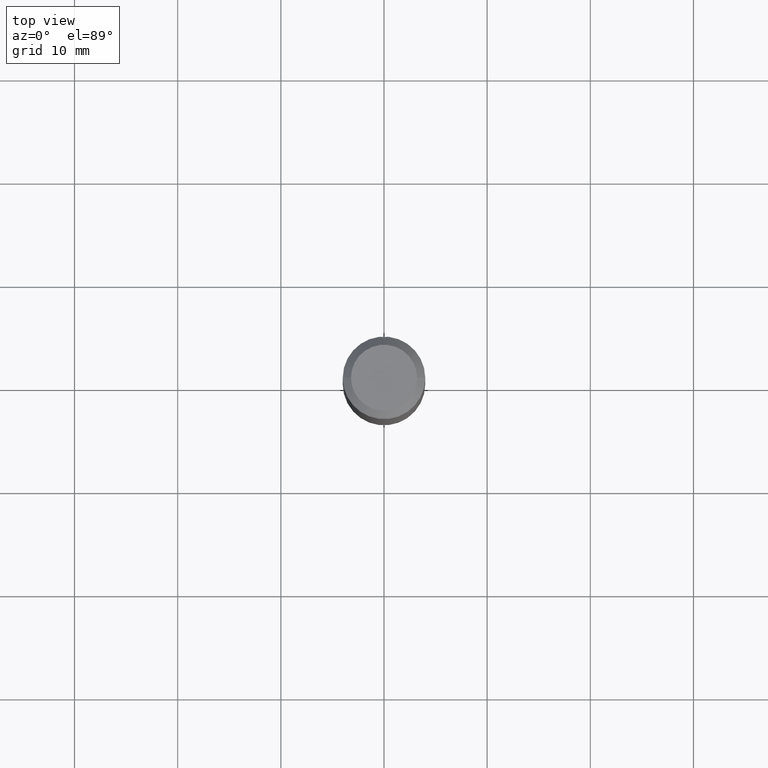
[diagram: clean part render]
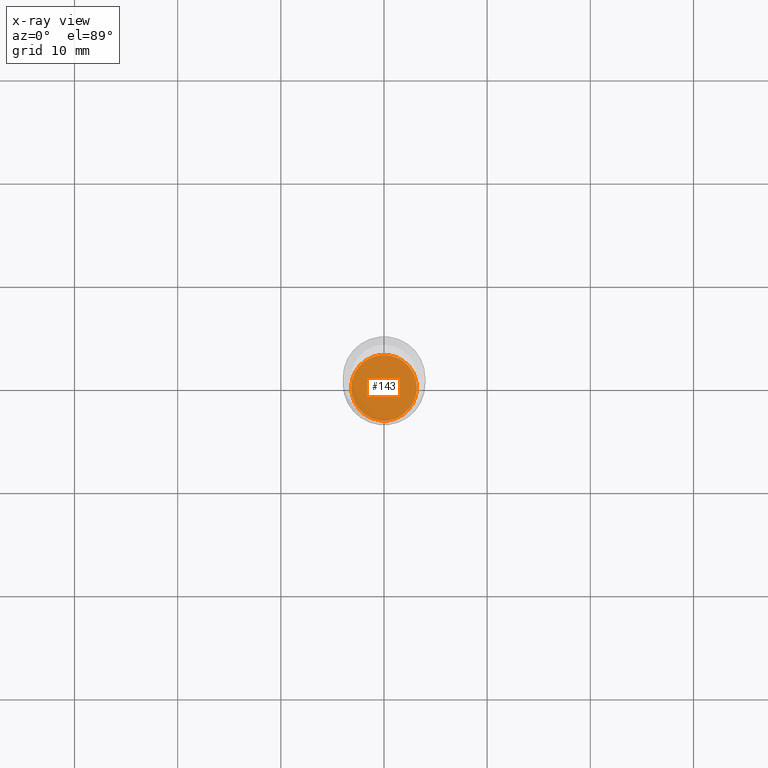
[diagram: x-ray — body ghosted, one internal face saturated and labeled with its STEP entity id]
A machine part, top view, then the same camera in x-ray: the body is ghosted and one INTERNAL B-rep face — a face not visible from any outside direction — is saturated and labeled: STEP entity #143.
In plain terms, the highlighted planar face has unit normal (-0, 0, 1).
Its self-contained STEP definition (entity closure, byte-faithful):
#4 = DIRECTION ( 'NONE',  ( 1.000000000000000000, -6.982962677686265922E-15, 4.876176775795935793E-29 ) ) ;
#41 = AXIS2_PLACEMENT_3D ( 'NONE', #52, #217, #396 ) ;
#43 = VERTEX_POINT ( 'NONE', #248 ) ;
#47 = AXIS2_PLACEMENT_3D ( 'NONE', #94, #214, #4 ) ;
#52 = CARTESIAN_POINT ( 'NONE',  ( 5.431141671656569525E-29, -7.754230905436741419E-15, -2.220899999999999874 ) ) ;
#89 = DIRECTION ( 'NONE',  ( -2.445468806185136597E-29, 3.491481338843145583E-15, 1.000000000000000000 ) ) ;
#91 = ORIENTED_EDGE ( 'NONE', *, *, #326, .F. ) ;
#94 = CARTESIAN_POINT ( 'NONE',  ( 5.431141671656569525E-29, -7.754230905436741419E-15, -2.220899999999999874 ) ) ;
#134 = ORIENTED_EDGE ( 'NONE', *, *, #232, .F. ) ;
#142 = CARTESIAN_POINT ( 'NONE',  ( 5.431141671656569525E-29, -7.754230905436741419E-15, -2.220899999999999874 ) ) ;
#143 = ADVANCED_FACE ( 'NONE', ( #333 ), #443, .F. ) ;
#157 = CIRCLE ( 'NONE', #41, 0.1255000000000000004 ) ;
#174 = DIRECTION ( 'NONE',  ( 1.000000000000000000, -6.982962677686267499E-15, 0.000000000000000000 ) ) ;
#212 = EDGE_LOOP ( 'NONE', ( #91, #134 ) ) ;
#214 = DIRECTION ( 'NONE',  ( -2.438088387897960049E-29, 3.491481338843145188E-15, 1.000000000000000000 ) ) ;
#217 = DIRECTION ( 'NONE',  ( -2.445468806185136597E-29, 3.491481338843145583E-15, 1.000000000000000000 ) ) ;
#232 = EDGE_CURVE ( 'NONE', #43, #282, #157, .T. ) ;
#236 = AXIS2_PLACEMENT_3D ( 'NONE', #142, #89, #174 ) ;
#248 = CARTESIAN_POINT ( 'NONE',  ( -0.1255000000000000004, -6.859850544883704876E-15, -2.220899999999999874 ) ) ;
#282 = VERTEX_POINT ( 'NONE', #407 ) ;
#326 = EDGE_CURVE ( 'NONE', #282, #43, #450, .T. ) ;
#333 = FACE_OUTER_BOUND ( 'NONE', #212, .T. ) ;
#396 = DIRECTION ( 'NONE',  ( 1.000000000000000000, -6.982962677686267499E-15, 0.000000000000000000 ) ) ;
#407 = CARTESIAN_POINT ( 'NONE',  ( 0.1255000000000000004, -8.630592721486367765E-15, -2.220899999999999874 ) ) ;
#443 = PLANE ( 'NONE',  #47 ) ;
#450 = CIRCLE ( 'NONE', #236, 0.1255000000000000004 ) ;